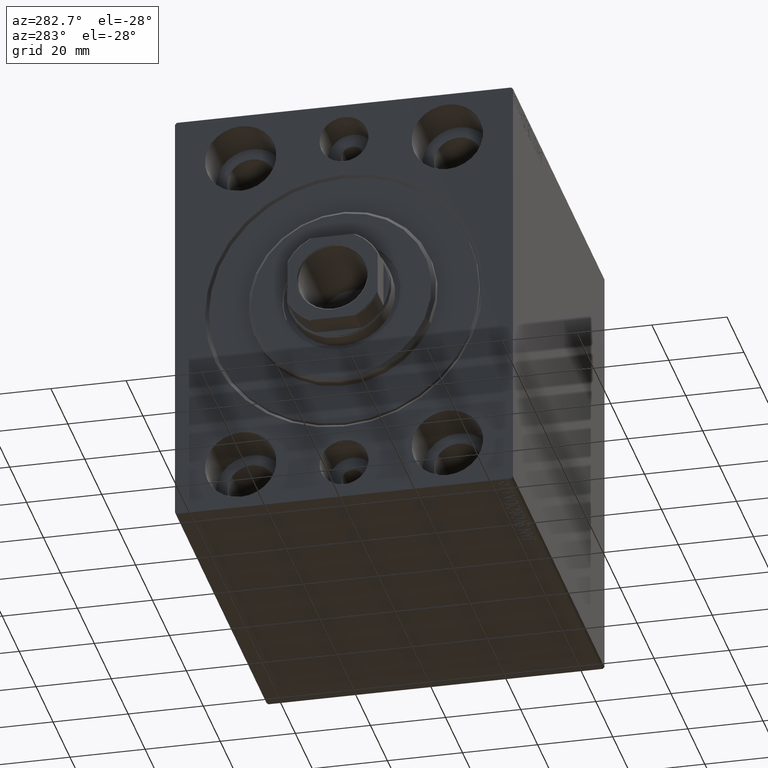
[diagram: clean part render]
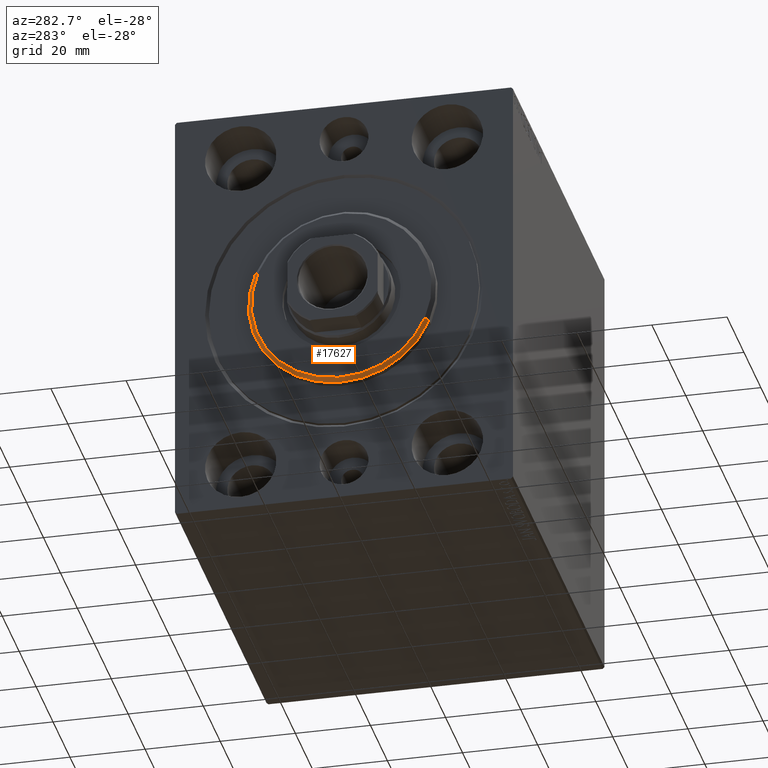
[diagram: same view with one face highlighted and labeled with its STEP entity id]
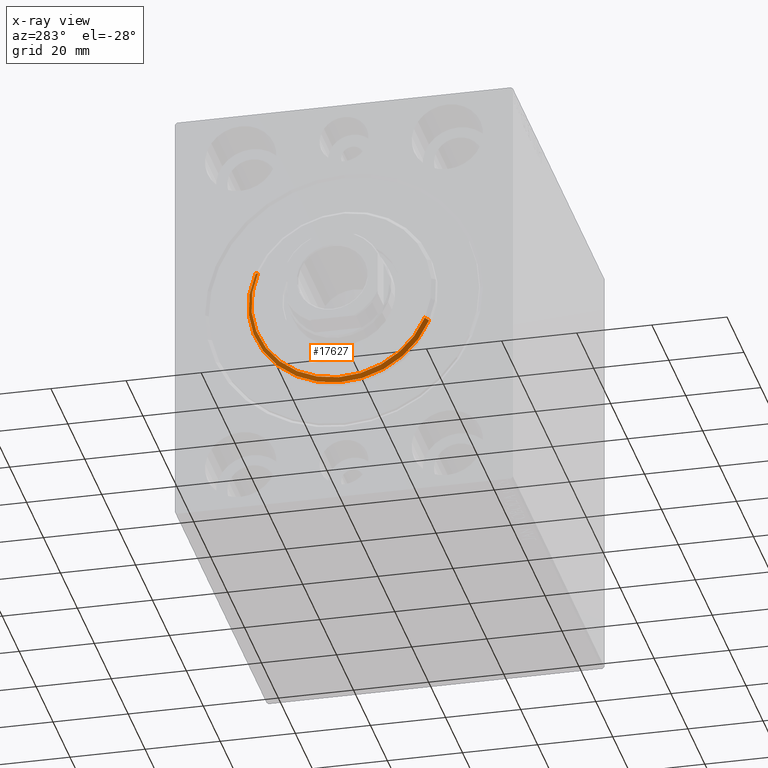
[diagram: x-ray of the same camera — body ghosted, the highlighted face saturated]
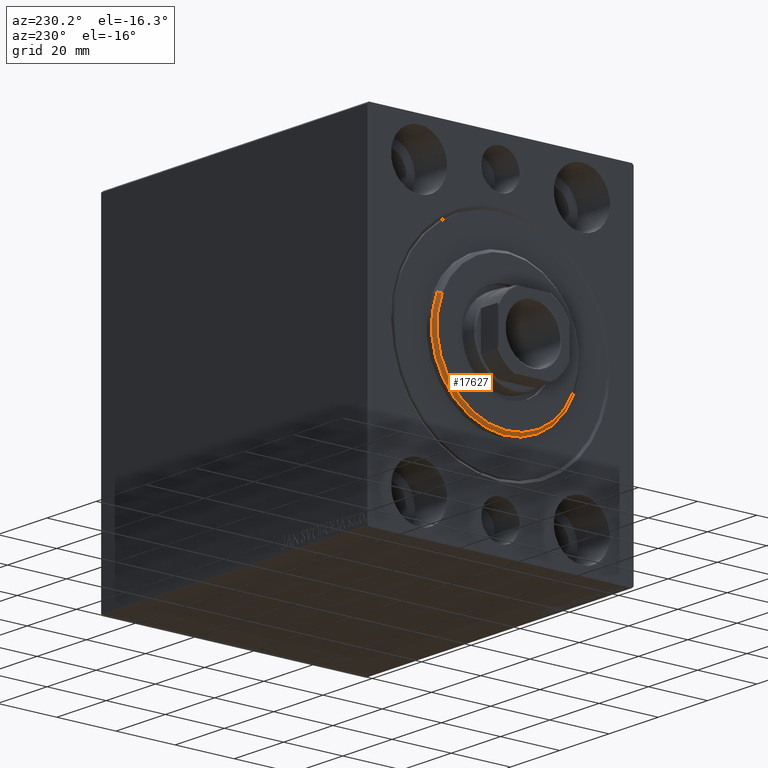
[diagram: same view with one face highlighted and labeled with its STEP entity id]
A machine part, auxiliary view. The second image highlights one B-rep face of the part: STEP entity #17627.
The next image is the same camera in x-ray: the body ghosted, the highlighted face saturated — about 0% of this face is hidden behind the body in this view.
A second angle (auxiliary view) of the same face is appended — the face is thin or edge-on in the first view.
In plain terms, the highlighted conical surface has half-angle 45 deg.
Its self-contained STEP definition (entity closure, byte-faithful):
#389 = DIRECTION ( 'NONE',  ( 0.000000000000000000, 0.000000000000000000, 1.000000000000000000 ) ) ;
#602 = CARTESIAN_POINT ( 'NONE',  ( 3.000000000000000000, 0.000000000000000000, 0.000000000000000000 ) ) ;
#2829 = VECTOR ( 'NONE', #15659, 1000.000000000000000 ) ;
#3524 = LINE ( 'NONE', #27839, #26222 ) ;
#6846 = ORIENTED_EDGE ( 'NONE', *, *, #27495, .F. ) ;
#7945 = CARTESIAN_POINT ( 'NONE',  ( 3.000000000000000000, 2.939152317953648683E-15, -24.00000000000000711 ) ) ;
#8516 = CONICAL_SURFACE ( 'NONE', #14887, 24.00000000000000711, 0.7853981633974396193 ) ;
#9365 = AXIS2_PLACEMENT_3D ( 'NONE', #22976, #36470, #40442 ) ;
#10596 = VERTEX_POINT ( 'NONE', #37738 ) ;
#11550 = EDGE_CURVE ( 'NONE', #36781, #10596, #28439, .T. ) ;
#14887 = AXIS2_PLACEMENT_3D ( 'NONE', #602, #30764, #389 ) ;
#15147 = CARTESIAN_POINT ( 'NONE',  ( 3.000000000000000000, 3.000384657911015469E-15, -24.00000000000000711 ) ) ;
#15611 = CARTESIAN_POINT ( 'NONE',  ( 1.999999999999988676, 0.000000000000000000, 0.000000000000000000 ) ) ;
#15659 = DIRECTION ( 'NONE',  ( -0.7071067811865536790, 8.659560562354858902E-17, -0.7071067811865414665 ) ) ;
#16257 = CARTESIAN_POINT ( 'NONE',  ( 1.999999999999988676, 0.000000000000000000, 25.00000000000000000 ) ) ;
#17256 = FACE_OUTER_BOUND ( 'NONE', #35321, .T. ) ;
#17513 = ORIENTED_EDGE ( 'NONE', *, *, #17796, .T. ) ;
#17627 = ADVANCED_FACE ( 'NONE', ( #17256 ), #8516, .T. ) ;
#17796 = EDGE_CURVE ( 'NONE', #36781, #27083, #24779, .T. ) ;
#19594 = EDGE_CURVE ( 'NONE', #10596, #25907, #3524, .T. ) ;
#21636 = DIRECTION ( 'NONE',  ( 0.000000000000000000, 0.000000000000000000, -1.000000000000000000 ) ) ;
#22186 = CIRCLE ( 'NONE', #27841, 25.00000000000000000 ) ;
#22976 = CARTESIAN_POINT ( 'NONE',  ( 3.000000000000000000, 0.000000000000000000, 0.000000000000000000 ) ) ;
#24779 = LINE ( 'NONE', #7945, #2829 ) ;
#25907 = VERTEX_POINT ( 'NONE', #16257 ) ;
#26222 = VECTOR ( 'NONE', #35138, 1000.000000000000000 ) ;
#27083 = VERTEX_POINT ( 'NONE', #40570 ) ;
#27495 = EDGE_CURVE ( 'NONE', #25907, #27083, #22186, .T. ) ;
#27839 = CARTESIAN_POINT ( 'NONE',  ( 3.000000000000000000, 0.000000000000000000, 24.00000000000000711 ) ) ;
#27841 = AXIS2_PLACEMENT_3D ( 'NONE', #15611, #35991, #21636 ) ;
#28439 = CIRCLE ( 'NONE', #9365, 24.00000000000000711 ) ;
#30764 = DIRECTION ( 'NONE',  ( -1.000000000000000000, 0.000000000000000000, 0.000000000000000000 ) ) ;
#31368 = ORIENTED_EDGE ( 'NONE', *, *, #11550, .F. ) ;
#31464 = ORIENTED_EDGE ( 'NONE', *, *, #19594, .F. ) ;
#35138 = DIRECTION ( 'NONE',  ( -0.7071067811865536790, 0.000000000000000000, 0.7071067811865414665 ) ) ;
#35321 = EDGE_LOOP ( 'NONE', ( #31368, #17513, #6846, #31464 ) ) ;
#35991 = DIRECTION ( 'NONE',  ( -1.000000000000000000, 0.000000000000000000, 0.000000000000000000 ) ) ;
#36470 = DIRECTION ( 'NONE',  ( 1.000000000000000000, -0.000000000000000000, 0.000000000000000000 ) ) ;
#36781 = VERTEX_POINT ( 'NONE', #15147 ) ;
#37738 = CARTESIAN_POINT ( 'NONE',  ( 3.000000000000000000, 0.000000000000000000, 24.00000000000000711 ) ) ;
#40442 = DIRECTION ( 'NONE',  ( 0.000000000000000000, 0.000000000000000000, -1.000000000000000000 ) ) ;
#40570 = CARTESIAN_POINT ( 'NONE',  ( 1.999999999999988676, 3.061616997868383043E-15, -25.00000000000000000 ) ) ;